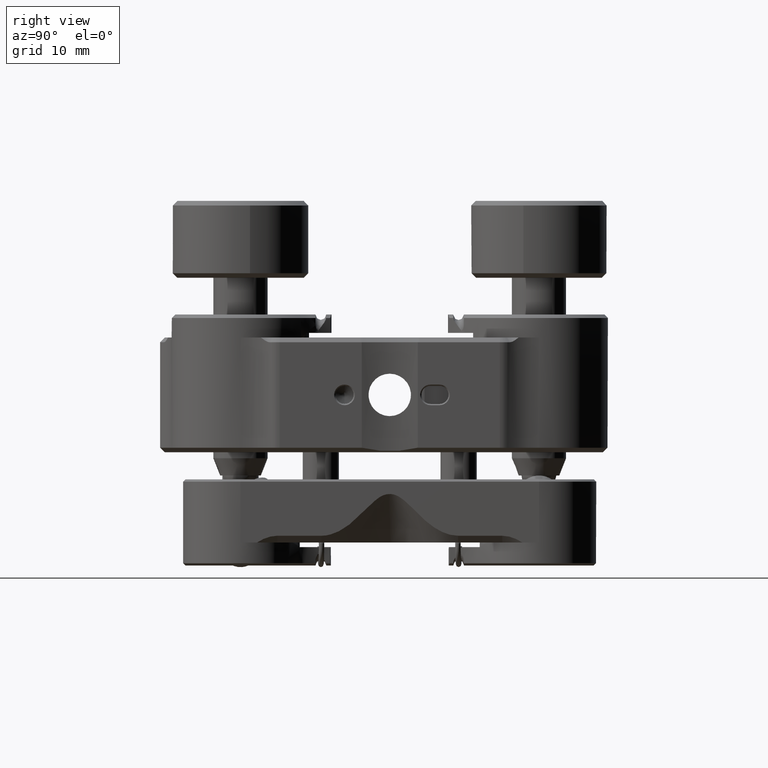
[diagram: clean part render]
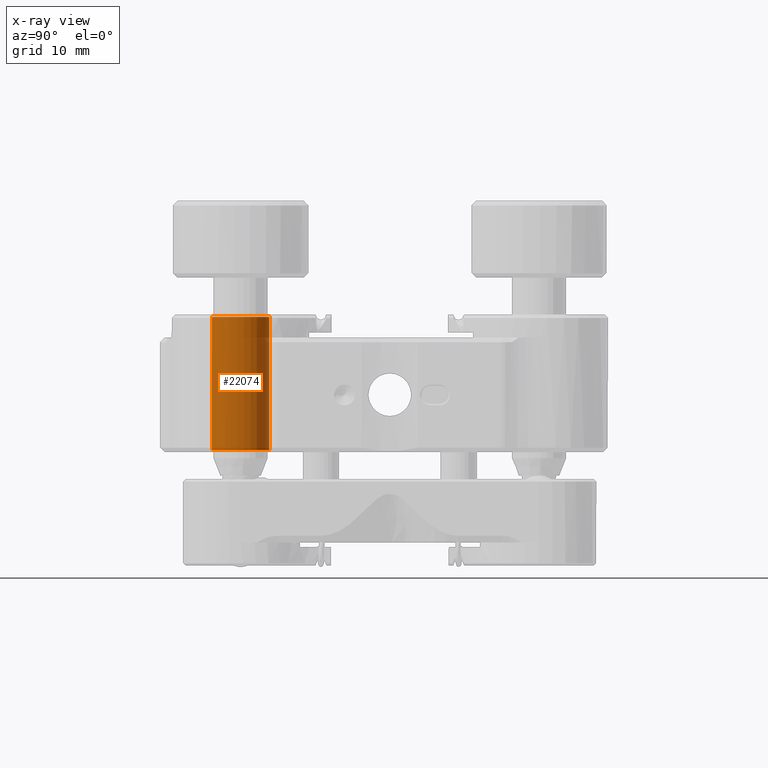
[diagram: x-ray — body ghosted, one internal face saturated and labeled with its STEP entity id]
A machine part, right view, then the same camera in x-ray: the body is ghosted and one INTERNAL B-rep face — a face not visible from any outside direction — is saturated and labeled: STEP entity #22074.
In plain terms, the highlighted cylindrical surface (bore or boss wall) has radius 3.175 mm, axis along (0, 0, -1).
Its self-contained STEP definition (entity closure, byte-faithful):
#1657 = FACE_OUTER_BOUND ( 'NONE', #27014, .T. ) ;
#2581 = VERTEX_POINT ( 'NONE', #11618 ) ;
#10112 = DIRECTION ( 'NONE',  ( 2.776129051972644027E-17, 2.760323471275298556E-17, -1.000000000000000000 ) ) ;
#10164 = DIRECTION ( 'NONE',  ( 8.741913579802357444E-15, -1.000000000000000000, 0.000000000000000000 ) ) ;
#11147 = CIRCLE ( 'NONE', #20422, 3.175000000000000711 ) ;
#11618 = CARTESIAN_POINT ( 'NONE',  ( -36.85884826638650935, 8.939097397248531252, 40.48770909685327268 ) ) ;
#12016 = CIRCLE ( 'NONE', #56330, 3.174999999972137665 ) ;
#15278 = DIRECTION ( 'NONE',  ( 8.741913579725640721E-15, -1.000000000000000000, 0.000000000000000000 ) ) ;
#17741 = ORIENTED_EDGE ( 'NONE', *, *, #35550, .T. ) ;
#20422 = AXIS2_PLACEMENT_3D ( 'NONE', #34951, #10112, #15278 ) ;
#21875 = EDGE_LOOP ( 'NONE', ( #17741 ) ) ;
#22074 = ADVANCED_FACE ( 'NONE', ( #1657, #55853 ), #31963, .F. ) ;
#27014 = EDGE_LOOP ( 'NONE', ( #34502 ) ) ;
#31963 = CYLINDRICAL_SURFACE ( 'NONE', #41400, 3.175000000000000711 ) ;
#34502 = ORIENTED_EDGE ( 'NONE', *, *, #50915, .F. ) ;
#34689 = CARTESIAN_POINT ( 'NONE',  ( -36.85884826638653777, 12.11409739724853374, 25.75570909694006616 ) ) ;
#34951 = CARTESIAN_POINT ( 'NONE',  ( -36.85884826638653777, 12.11409739724853196, 40.48770909685327268 ) ) ;
#35550 = EDGE_CURVE ( 'NONE', #54566, #54566, #12016, .T. ) ;
#41400 = AXIS2_PLACEMENT_3D ( 'NONE', #42289, #47133, #56793 ) ;
#42289 = CARTESIAN_POINT ( 'NONE',  ( -36.85884826638653777, 12.11409739724853196, 40.74170909685329178 ) ) ;
#44576 = CARTESIAN_POINT ( 'NONE',  ( -36.85884826638650935, 8.939097397276395185, 25.75570909694006616 ) ) ;
#47133 = DIRECTION ( 'NONE',  ( 2.776129051972644027E-17, 2.760323471275298556E-17, -1.000000000000000000 ) ) ;
#50915 = EDGE_CURVE ( 'NONE', #2581, #2581, #11147, .T. ) ;
#54371 = DIRECTION ( 'NONE',  ( 2.776129051972644027E-17, 2.760323471275298556E-17, -1.000000000000000000 ) ) ;
#54566 = VERTEX_POINT ( 'NONE', #44576 ) ;
#55853 = FACE_OUTER_BOUND ( 'NONE', #21875, .T. ) ;
#56330 = AXIS2_PLACEMENT_3D ( 'NONE', #34689, #54371, #10164 ) ;
#56793 = DIRECTION ( 'NONE',  ( 8.741913579725640721E-15, -1.000000000000000000, 0.000000000000000000 ) ) ;